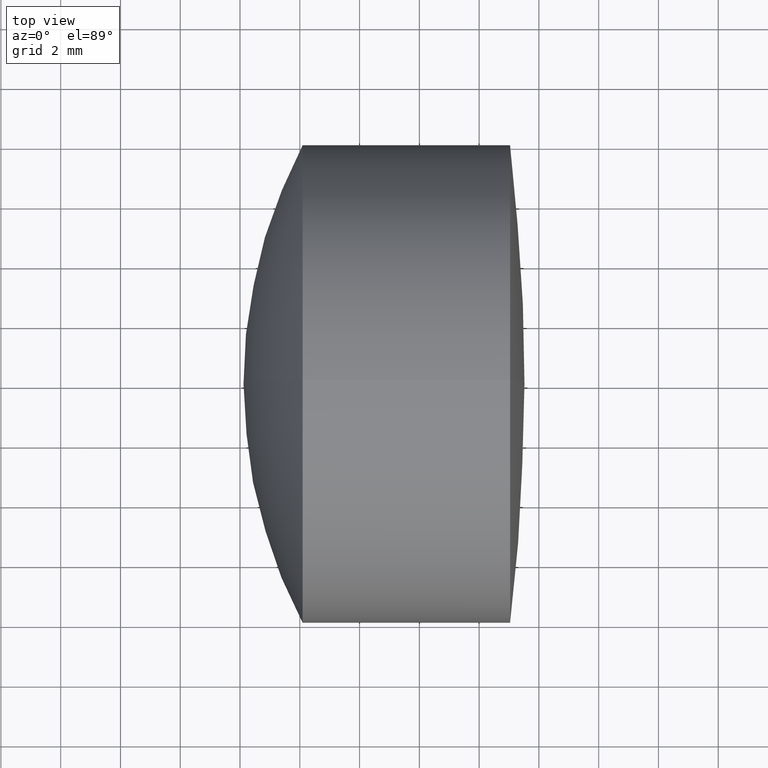
[diagram: clean part render]
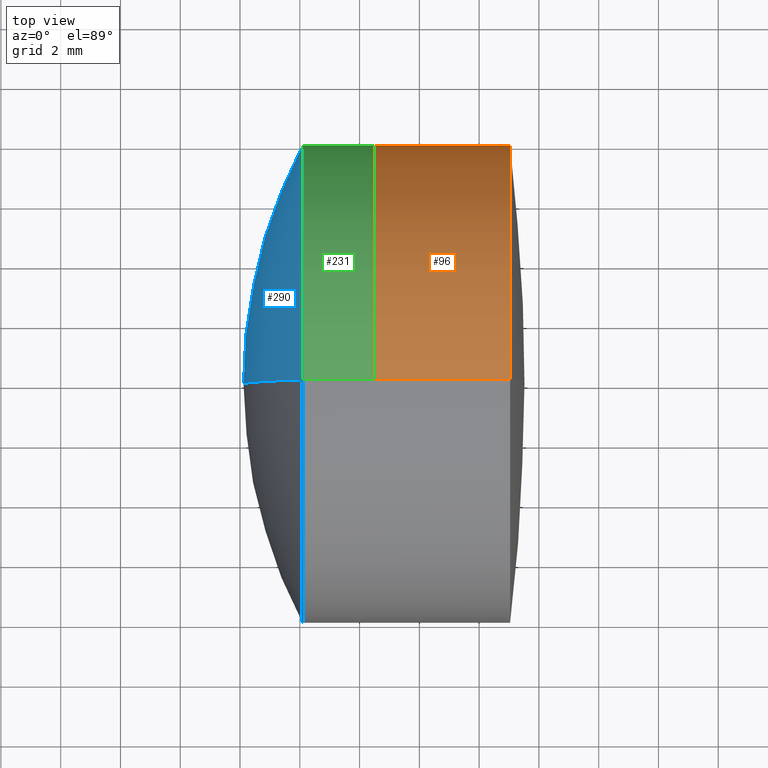
[diagram: same view with three faces highlighted in distinct colors, each labeled with its STEP entity id]
A machine part, top view with three faces highlighted in distinct colors.
Their STEP definitions:

[orange] entity #96 — the highlighted cylindrical surface (partial cylindrical patch) has radius 8 mm, axis along (-1, -0, -0).
#12 = LINE ( 'NONE', #283, #121 ) ;
#22 = DIRECTION ( 'NONE',  ( -1.000000000000000000, -0.0000000000000000000, -0.0000000000000000000 ) ) ;
#26 = DIRECTION ( 'NONE',  ( -1.000000000000000000, -0.0000000000000000000, -0.0000000000000000000 ) ) ;
#27 = CARTESIAN_POINT ( 'NONE',  ( 21.03539995463979300, 0.0000000000000000000, 0.0000000000000000000 ) ) ;
#35 = EDGE_CURVE ( 'NONE', #153, #156, #230, .T. ) ;
#57 = CARTESIAN_POINT ( 'NONE',  ( 16.48846299245593300, 0.0000000000000000000, 8.000000000000000000 ) ) ;
#71 = EDGE_CURVE ( 'NONE', #153, #272, #180, .T. ) ;
#82 = CARTESIAN_POINT ( 'NONE',  ( 21.03539995463979300, 9.797174393178819700E-016, -7.999999999999992900 ) ) ;
#96 = ADVANCED_FACE ( 'NONE', ( #117 ), #103, .T. ) ;
#103 = CYLINDRICAL_SURFACE ( 'NONE', #187, 7.999999999999996400 ) ;
#109 = EDGE_LOOP ( 'NONE', ( #144, #209, #347, #189 ) ) ;
#117 = FACE_OUTER_BOUND ( 'NONE', #109, .T. ) ;
#121 = VECTOR ( 'NONE', #278, 1000.000000000000000 ) ;
#131 = VERTEX_POINT ( 'NONE', #314 ) ;
#144 = ORIENTED_EDGE ( 'NONE', *, *, #71, .T. ) ;
#153 = VERTEX_POINT ( 'NONE', #262 ) ;
#156 = VERTEX_POINT ( 'NONE', #57 ) ;
#157 = DIRECTION ( 'NONE',  ( -1.000000000000000000, -0.0000000000000000000, -0.0000000000000000000 ) ) ;
#179 = EDGE_CURVE ( 'NONE', #272, #131, #12, .T. ) ;
#180 = CIRCLE ( 'NONE', #245, 7.999999999999992900 ) ;
#187 = AXIS2_PLACEMENT_3D ( 'NONE', #226, #157, #223 ) ;
#189 = ORIENTED_EDGE ( 'NONE', *, *, #35, .F. ) ;
#194 = EDGE_CURVE ( 'NONE', #156, #131, #301, .T. ) ;
#205 = CARTESIAN_POINT ( 'NONE',  ( -0.5519199926577972300, 0.0000000000000000000, 7.999999999999996400 ) ) ;
#209 = ORIENTED_EDGE ( 'NONE', *, *, #179, .T. ) ;
#222 = DIRECTION ( 'NONE',  ( 0.0000000000000000000, 0.0000000000000000000, 1.000000000000000000 ) ) ;
#223 = DIRECTION ( 'NONE',  ( 0.0000000000000000000, 0.0000000000000000000, 1.000000000000000000 ) ) ;
#226 = CARTESIAN_POINT ( 'NONE',  ( -0.5519199926577972300, 0.0000000000000000000, 0.0000000000000000000 ) ) ;
#230 = LINE ( 'NONE', #205, #260 ) ;
#240 = CARTESIAN_POINT ( 'NONE',  ( 16.48846299245593300, 0.0000000000000000000, 0.0000000000000000000 ) ) ;
#245 = AXIS2_PLACEMENT_3D ( 'NONE', #27, #22, #339 ) ;
#260 = VECTOR ( 'NONE', #320, 1000.000000000000000 ) ;
#262 = CARTESIAN_POINT ( 'NONE',  ( 21.03539995463979300, 0.0000000000000000000, 7.999999999999992900 ) ) ;
#272 = VERTEX_POINT ( 'NONE', #82 ) ;
#278 = DIRECTION ( 'NONE',  ( -1.000000000000000000, -0.0000000000000000000, -0.0000000000000000000 ) ) ;
#283 = CARTESIAN_POINT ( 'NONE',  ( -0.5519199926577972300, 9.797174393178821700E-016, -7.999999999999996400 ) ) ;
#301 = CIRCLE ( 'NONE', #313, 8.000000000000000000 ) ;
#313 = AXIS2_PLACEMENT_3D ( 'NONE', #240, #26, #222 ) ;
#314 = CARTESIAN_POINT ( 'NONE',  ( 16.48846299245593300, 9.797174393178827600E-016, -8.000000000000000000 ) ) ;
#320 = DIRECTION ( 'NONE',  ( -1.000000000000000000, -0.0000000000000000000, -0.0000000000000000000 ) ) ;
#339 = DIRECTION ( 'NONE',  ( 0.0000000000000000000, 0.0000000000000000000, 1.000000000000000000 ) ) ;
#347 = ORIENTED_EDGE ( 'NONE', *, *, #194, .F. ) ;

[blue] entity #290 — the highlighted spherical surface has radius 17.179 mm.
#2 = AXIS2_PLACEMENT_3D ( 'NONE', #43, #87, #6 ) ;
#5 = ORIENTED_EDGE ( 'NONE', *, *, #55, .T. ) ;
#6 = DIRECTION ( 'NONE',  ( 0.0000000000000000000, 0.0000000000000000000, -1.000000000000000000 ) ) ;
#10 = AXIS2_PLACEMENT_3D ( 'NONE', #198, #161, #295 ) ;
#16 = VERTEX_POINT ( 'NONE', #154 ) ;
#17 = DIRECTION ( 'NONE',  ( 0.0000000000000000000, 1.224646799147353200E-016, -1.000000000000000000 ) ) ;
#19 = EDGE_CURVE ( 'NONE', #105, #16, #52, .T. ) ;
#43 = CARTESIAN_POINT ( 'NONE',  ( 29.29604347957312900, 0.0000000000000000000, 2.710505431219307800E-017 ) ) ;
#52 = CIRCLE ( 'NONE', #160, 8.000000000000000000 ) ;
#55 = EDGE_CURVE ( 'NONE', #16, #158, #330, .T. ) ;
#87 = DIRECTION ( 'NONE',  ( -0.0000000000000000000, -1.000000000000000000, -0.0000000000000000000 ) ) ;
#105 = VERTEX_POINT ( 'NONE', #287 ) ;
#132 = CARTESIAN_POINT ( 'NONE',  ( 14.09347655816146400, 0.0000000000000000000, 0.0000000000000000000 ) ) ;
#133 = FACE_OUTER_BOUND ( 'NONE', #228, .T. ) ;
#148 = CIRCLE ( 'NONE', #196, 17.17900000000000200 ) ;
#154 = CARTESIAN_POINT ( 'NONE',  ( 14.09347655816146400, 0.0000000000000000000, -8.000000000000000000 ) ) ;
#158 = VERTEX_POINT ( 'NONE', #270 ) ;
#160 = AXIS2_PLACEMENT_3D ( 'NONE', #132, #297, #234 ) ;
#161 = DIRECTION ( 'NONE',  ( 0.0000000000000000000, 1.000000000000000000, -0.0000000000000000000 ) ) ;
#192 = DIRECTION ( 'NONE',  ( 0.0000000000000000000, -1.000000000000000000, -1.224646799147353200E-016 ) ) ;
#196 = AXIS2_PLACEMENT_3D ( 'NONE', #221, #192, #17 ) ;
#198 = CARTESIAN_POINT ( 'NONE',  ( 29.29604347957312900, 0.0000000000000000000, 2.710505431219307800E-017 ) ) ;
#221 = CARTESIAN_POINT ( 'NONE',  ( 29.29604347957312900, 0.0000000000000000000, 2.710505431219307800E-017 ) ) ;
#228 = EDGE_LOOP ( 'NONE', ( #258, #263, #5 ) ) ;
#234 = DIRECTION ( 'NONE',  ( 0.0000000000000000000, 0.0000000000000000000, 1.000000000000000000 ) ) ;
#252 = SPHERICAL_SURFACE ( 'NONE', #2, 17.17900000000000200 ) ;
#258 = ORIENTED_EDGE ( 'NONE', *, *, #302, .F. ) ;
#263 = ORIENTED_EDGE ( 'NONE', *, *, #19, .T. ) ;
#270 = CARTESIAN_POINT ( 'NONE',  ( 12.11704347957312500, 0.0000000000000000000, -1.024805313815426000E-015 ) ) ;
#287 = CARTESIAN_POINT ( 'NONE',  ( 14.09347655816146400, -9.797174393178823700E-016, 8.000000000000000000 ) ) ;
#290 = ADVANCED_FACE ( 'NONE', ( #133 ), #252, .T. ) ;
#295 = DIRECTION ( 'NONE',  ( 0.0000000000000000000, 0.0000000000000000000, 1.000000000000000000 ) ) ;
#297 = DIRECTION ( 'NONE',  ( -1.000000000000000000, -0.0000000000000000000, -0.0000000000000000000 ) ) ;
#302 = EDGE_CURVE ( 'NONE', #105, #158, #148, .T. ) ;
#330 = CIRCLE ( 'NONE', #10, 17.17900000000000200 ) ;

[green] entity #231 — the highlighted cylindrical surface (partial cylindrical patch) has radius 8 mm, axis along (-1, -0, -0).
#4 = CIRCLE ( 'NONE', #20, 8.000000000000000000 ) ;
#16 = VERTEX_POINT ( 'NONE', #154 ) ;
#19 = EDGE_CURVE ( 'NONE', #105, #16, #52, .T. ) ;
#20 = AXIS2_PLACEMENT_3D ( 'NONE', #328, #137, #136 ) ;
#23 = DIRECTION ( 'NONE',  ( -1.000000000000000000, -0.0000000000000000000, -0.0000000000000000000 ) ) ;
#29 = FACE_OUTER_BOUND ( 'NONE', #346, .T. ) ;
#41 = DIRECTION ( 'NONE',  ( -1.000000000000000000, -0.0000000000000000000, -0.0000000000000000000 ) ) ;
#52 = CIRCLE ( 'NONE', #160, 8.000000000000000000 ) ;
#56 = AXIS2_PLACEMENT_3D ( 'NONE', #211, #159, #176 ) ;
#76 = VECTOR ( 'NONE', #41, 1000.000000000000000 ) ;
#79 = ORIENTED_EDGE ( 'NONE', *, *, #139, .F. ) ;
#84 = LINE ( 'NONE', #107, #76 ) ;
#105 = VERTEX_POINT ( 'NONE', #287 ) ;
#107 = CARTESIAN_POINT ( 'NONE',  ( -9.702612178336682500, 9.797174393178825700E-016, -8.000000000000000000 ) ) ;
#130 = VERTEX_POINT ( 'NONE', #315 ) ;
#132 = CARTESIAN_POINT ( 'NONE',  ( 14.09347655816146400, 0.0000000000000000000, 0.0000000000000000000 ) ) ;
#136 = DIRECTION ( 'NONE',  ( 0.0000000000000000000, 0.0000000000000000000, 1.000000000000000000 ) ) ;
#137 = DIRECTION ( 'NONE',  ( -1.000000000000000000, -0.0000000000000000000, -0.0000000000000000000 ) ) ;
#139 = EDGE_CURVE ( 'NONE', #165, #105, #186, .T. ) ;
#154 = CARTESIAN_POINT ( 'NONE',  ( 14.09347655816146400, 0.0000000000000000000, -8.000000000000000000 ) ) ;
#159 = DIRECTION ( 'NONE',  ( -1.000000000000000000, -0.0000000000000000000, -0.0000000000000000000 ) ) ;
#160 = AXIS2_PLACEMENT_3D ( 'NONE', #132, #297, #234 ) ;
#165 = VERTEX_POINT ( 'NONE', #217 ) ;
#176 = DIRECTION ( 'NONE',  ( 0.0000000000000000000, 0.0000000000000000000, 1.000000000000000000 ) ) ;
#185 = ORIENTED_EDGE ( 'NONE', *, *, #212, .T. ) ;
#186 = LINE ( 'NONE', #197, #200 ) ;
#197 = CARTESIAN_POINT ( 'NONE',  ( -9.702612178336682500, 0.0000000000000000000, 8.000000000000000000 ) ) ;
#200 = VECTOR ( 'NONE', #23, 1000.000000000000000 ) ;
#210 = ORIENTED_EDGE ( 'NONE', *, *, #19, .F. ) ;
#211 = CARTESIAN_POINT ( 'NONE',  ( -9.702612178336682500, 0.0000000000000000000, 0.0000000000000000000 ) ) ;
#212 = EDGE_CURVE ( 'NONE', #165, #130, #4, .T. ) ;
#217 = CARTESIAN_POINT ( 'NONE',  ( 16.48846299245593300, 0.0000000000000000000, 8.000000000000000000 ) ) ;
#224 = CYLINDRICAL_SURFACE ( 'NONE', #56, 8.000000000000000000 ) ;
#231 = ADVANCED_FACE ( 'NONE', ( #29 ), #224, .T. ) ;
#234 = DIRECTION ( 'NONE',  ( 0.0000000000000000000, 0.0000000000000000000, 1.000000000000000000 ) ) ;
#274 = EDGE_CURVE ( 'NONE', #130, #16, #84, .T. ) ;
#287 = CARTESIAN_POINT ( 'NONE',  ( 14.09347655816146400, -9.797174393178823700E-016, 8.000000000000000000 ) ) ;
#297 = DIRECTION ( 'NONE',  ( -1.000000000000000000, -0.0000000000000000000, -0.0000000000000000000 ) ) ;
#315 = CARTESIAN_POINT ( 'NONE',  ( 16.48846299245593300, 9.797174393178825700E-016, -8.000000000000000000 ) ) ;
#318 = ORIENTED_EDGE ( 'NONE', *, *, #274, .T. ) ;
#328 = CARTESIAN_POINT ( 'NONE',  ( 16.48846299245593300, 0.0000000000000000000, 0.0000000000000000000 ) ) ;
#346 = EDGE_LOOP ( 'NONE', ( #185, #318, #210, #79 ) ) ;